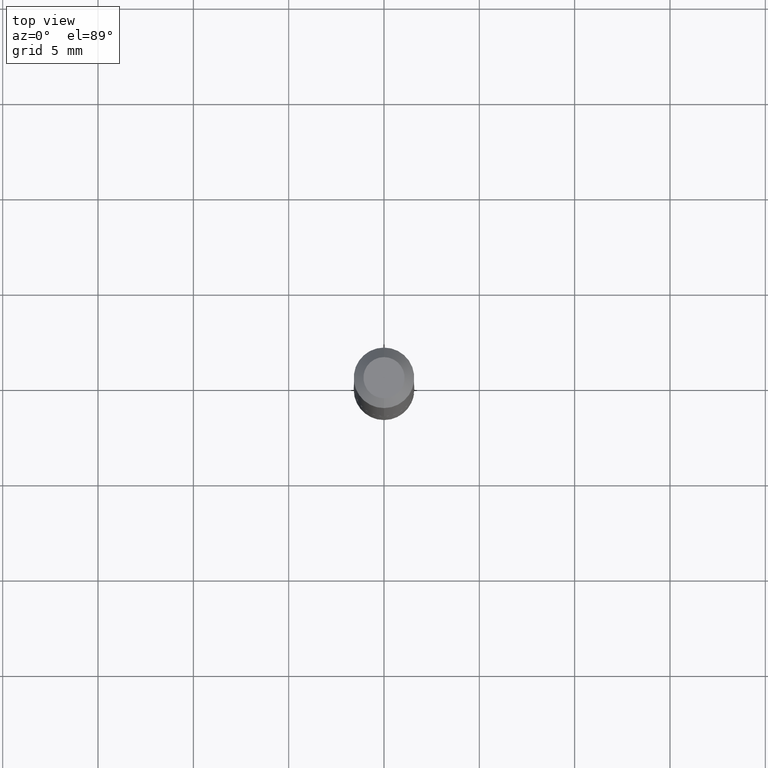
[diagram: clean part render]
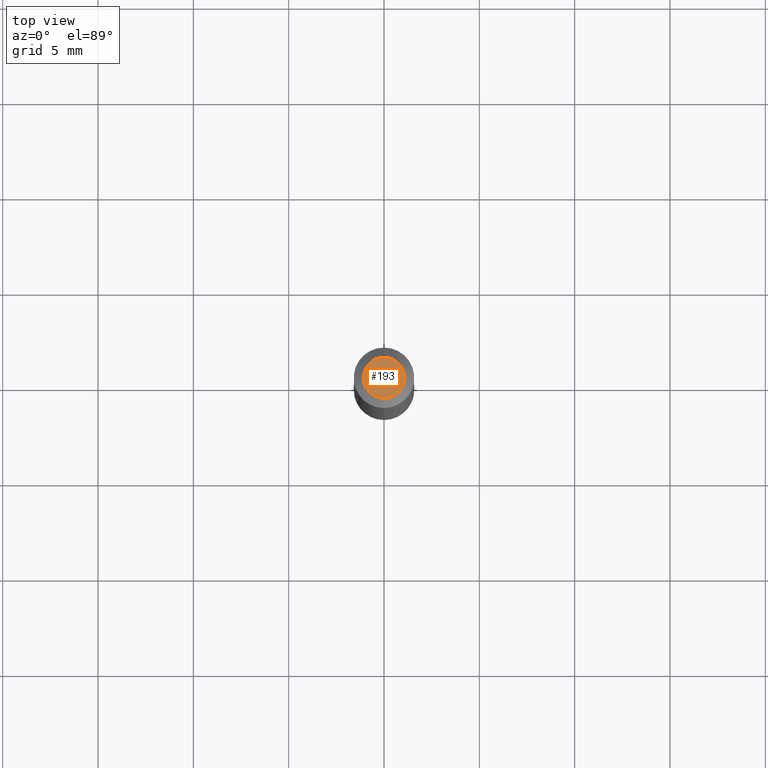
[diagram: same view with one face highlighted and labeled with its STEP entity id]
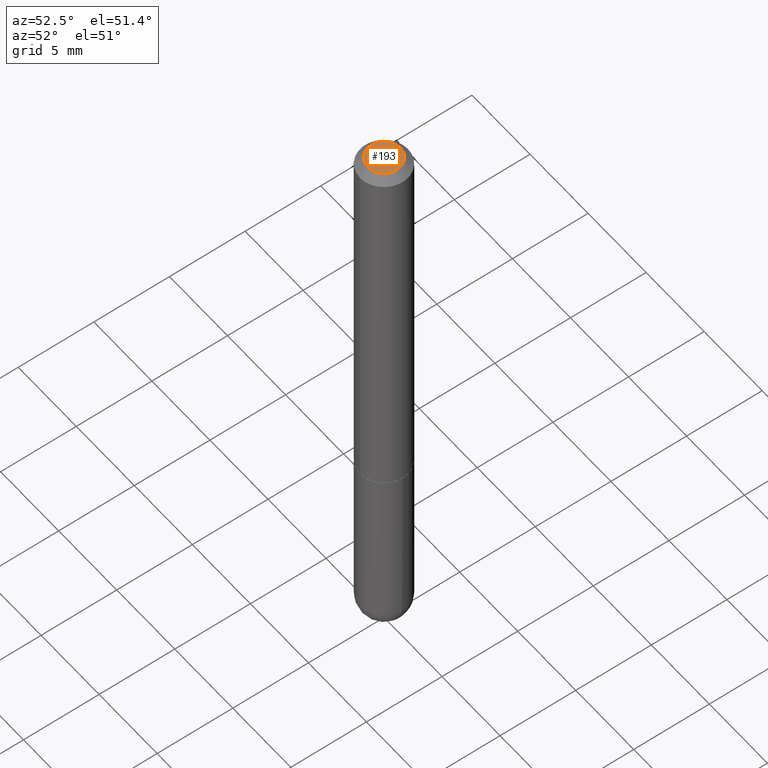
[diagram: same view with one face highlighted and labeled with its STEP entity id]
A machine part, top view. The second image highlights one B-rep face of the part: STEP entity #193.
A second angle (auxiliary view) of the same face is appended — the face is thin or edge-on in the first view.
In plain terms, the highlighted planar face has unit normal (0, -0, -1).
Its self-contained STEP definition (entity closure, byte-faithful):
#15 = EDGE_CURVE ( 'NONE', #305, #384, #292, .T. ) ;
#26 = CIRCLE ( 'NONE', #277, 0.04249999999999975325 ) ;
#37 = DIRECTION ( 'NONE',  ( -2.460225097769995891E-29, 3.470349489417668570E-15, 1.000000000000000000 ) ) ;
#47 = DIRECTION ( 'NONE',  ( -6.982962677686265922E-15, -1.000000000000000000, 3.470349489417668175E-15 ) ) ;
#61 = PLANE ( 'NONE',  #348 ) ;
#120 = ORIENTED_EDGE ( 'NONE', *, *, #15, .T. ) ;
#127 = DIRECTION ( 'NONE',  ( 2.460225097769995611E-29, -3.470349489417668175E-15, -1.000000000000000000 ) ) ;
#162 = EDGE_CURVE ( 'NONE', #384, #305, #26, .T. ) ;
#164 = DIRECTION ( 'NONE',  ( -6.982962677686265922E-15, -1.000000000000000000, 3.470349489417668175E-15 ) ) ;
#167 = CARTESIAN_POINT ( 'NONE',  ( 3.666055405785284205E-16, 0.04249999999999975325, 9.491725503489062597E-17 ) ) ;
#179 = CARTESIAN_POINT ( 'NONE',  ( -3.601761448830043066E-16, -0.04249999999999975325, 3.898969616353907376E-16 ) ) ;
#188 = AXIS2_PLACEMENT_3D ( 'NONE', #320, #37, #164 ) ;
#193 = ADVANCED_FACE ( 'NONE', ( #279 ), #61, .F. ) ;
#209 = DIRECTION ( 'NONE',  ( -2.460225097769995891E-29, 3.470349489417668570E-15, 1.000000000000000000 ) ) ;
#256 = CARTESIAN_POINT ( 'NONE',  ( 2.967759138016645800E-16, 0.04249999999999975325, -2.628629913267970877E-17 ) ) ;
#277 = AXIS2_PLACEMENT_3D ( 'NONE', #402, #209, #47 ) ;
#279 = FACE_OUTER_BOUND ( 'NONE', #387, .T. ) ;
#292 = CIRCLE ( 'NONE', #188, 0.04249999999999975325 ) ;
#305 = VERTEX_POINT ( 'NONE', #179 ) ;
#316 = DIRECTION ( 'NONE',  ( 6.982962677686265922E-15, 1.000000000000000000, -3.470349489417668175E-15 ) ) ;
#320 = CARTESIAN_POINT ( 'NONE',  ( -5.963760518039635149E-45, 8.412373846420689507E-31, 2.424071083351406695E-16 ) ) ;
#348 = AXIS2_PLACEMENT_3D ( 'NONE', #256, #127, #316 ) ;
#372 = ORIENTED_EDGE ( 'NONE', *, *, #162, .T. ) ;
#384 = VERTEX_POINT ( 'NONE', #167 ) ;
#387 = EDGE_LOOP ( 'NONE', ( #372, #120 ) ) ;
#402 = CARTESIAN_POINT ( 'NONE',  ( -5.963760518039635149E-45, 8.412373846420689507E-31, 2.424071083351406695E-16 ) ) ;